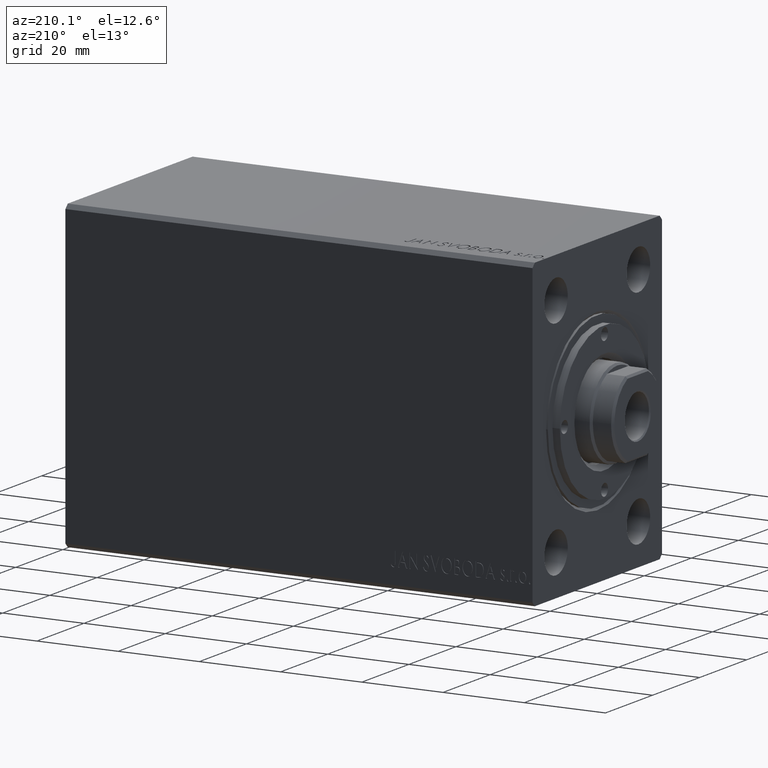
[diagram: clean part render]
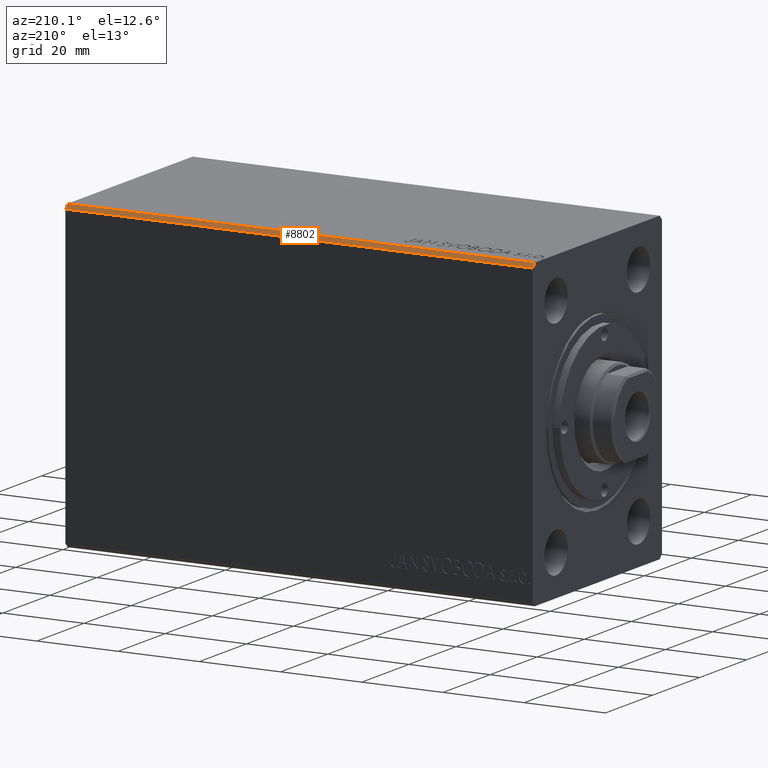
[diagram: same view with one face highlighted and labeled with its STEP entity id]
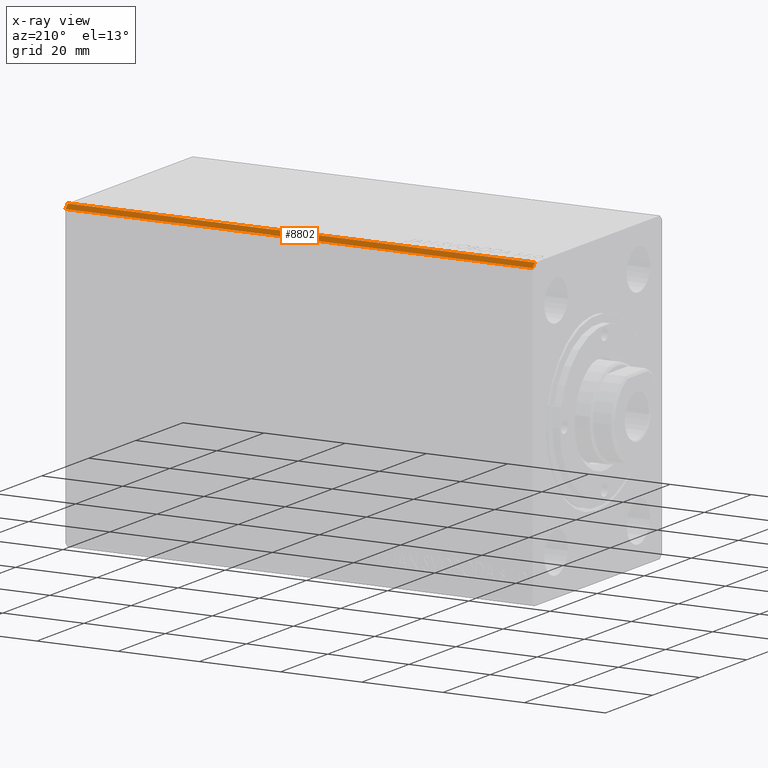
[diagram: x-ray of the same camera — body ghosted, the highlighted face saturated]
A machine part, auxiliary view. The second image highlights one B-rep face of the part: STEP entity #8802.
The next image is the same camera in x-ray: the body ghosted, the highlighted face saturated — about 0% of this face is hidden behind the body in this view.
In plain terms, the highlighted planar face has unit normal (0, -0.7071, -0.7071).
Its self-contained STEP definition (entity closure, byte-faithful):
#925 = DIRECTION ( 'NONE',  ( 0.000000000000000000, -0.7071067811865475727, -0.7071067811865475727 ) ) ;
#2450 = CARTESIAN_POINT ( 'NONE',  ( 115.0000000000000000, 27.50000000000000355, 36.50000000000000711 ) ) ;
#4379 = EDGE_CURVE ( 'NONE', #28225, #29889, #24785, .T. ) ;
#4450 = CARTESIAN_POINT ( 'NONE',  ( 0.000000000000000000, 27.50000000000000355, 36.50000000000000711 ) ) ;
#4730 = CARTESIAN_POINT ( 'NONE',  ( 115.0000000000000000, 27.50000000000000355, 36.50000000000000711 ) ) ;
#5311 = CARTESIAN_POINT ( 'NONE',  ( 115.0000000000000000, 26.50000000000000355, 37.50000000000000711 ) ) ;
#8802 = ADVANCED_FACE ( 'NONE', ( #25272 ), #12112, .F. ) ;
#10694 = CARTESIAN_POINT ( 'NONE',  ( 115.0000000000000000, 26.50000000000000355, 37.50000000000000711 ) ) ;
#11907 = EDGE_CURVE ( 'NONE', #41744, #28225, #33255, .T. ) ;
#12112 = PLANE ( 'NONE',  #16315 ) ;
#12590 = VECTOR ( 'NONE', #27289, 1000.000000000000114 ) ;
#14224 = ORIENTED_EDGE ( 'NONE', *, *, #33236, .F. ) ;
#14585 = VECTOR ( 'NONE', #19388, 1000.000000000000000 ) ;
#14745 = CARTESIAN_POINT ( 'NONE',  ( 0.000000000000000000, 26.50000000000000355, 37.50000000000000711 ) ) ;
#16315 = AXIS2_PLACEMENT_3D ( 'NONE', #4730, #925, #18373 ) ;
#18373 = DIRECTION ( 'NONE',  ( 0.000000000000000000, 0.7071067811865474617, -0.7071067811865474617 ) ) ;
#18762 = EDGE_LOOP ( 'NONE', ( #41476, #26946, #14224, #33297 ) ) ;
#19388 = DIRECTION ( 'NONE',  ( -1.000000000000000000, -0.000000000000000000, -0.000000000000000000 ) ) ;
#20205 = CARTESIAN_POINT ( 'NONE',  ( 115.0000000000000000, 27.50000000000000355, 36.50000000000000711 ) ) ;
#21058 = VERTEX_POINT ( 'NONE', #10694 ) ;
#24785 = LINE ( 'NONE', #4450, #12590 ) ;
#25272 = FACE_OUTER_BOUND ( 'NONE', #18762, .T. ) ;
#26349 = DIRECTION ( 'NONE',  ( -1.000000000000000000, -0.000000000000000000, -0.000000000000000000 ) ) ;
#26946 = ORIENTED_EDGE ( 'NONE', *, *, #37127, .F. ) ;
#27289 = DIRECTION ( 'NONE',  ( 0.000000000000000000, -0.7071067811865474617, 0.7071067811865474617 ) ) ;
#28225 = VERTEX_POINT ( 'NONE', #33147 ) ;
#29477 = VECTOR ( 'NONE', #26349, 1000.000000000000000 ) ;
#29889 = VERTEX_POINT ( 'NONE', #14745 ) ;
#31324 = DIRECTION ( 'NONE',  ( 0.000000000000000000, -0.7071067811865474617, 0.7071067811865474617 ) ) ;
#32322 = LINE ( 'NONE', #5311, #14585 ) ;
#33147 = CARTESIAN_POINT ( 'NONE',  ( 0.000000000000000000, 27.50000000000000355, 36.50000000000000711 ) ) ;
#33236 = EDGE_CURVE ( 'NONE', #41744, #21058, #34444, .T. ) ;
#33255 = LINE ( 'NONE', #2450, #29477 ) ;
#33297 = ORIENTED_EDGE ( 'NONE', *, *, #11907, .T. ) ;
#34444 = LINE ( 'NONE', #20205, #38738 ) ;
#37127 = EDGE_CURVE ( 'NONE', #21058, #29889, #32322, .T. ) ;
#38738 = VECTOR ( 'NONE', #31324, 1000.000000000000114 ) ;
#38816 = CARTESIAN_POINT ( 'NONE',  ( 115.0000000000000000, 27.50000000000000355, 36.50000000000000711 ) ) ;
#41476 = ORIENTED_EDGE ( 'NONE', *, *, #4379, .T. ) ;
#41744 = VERTEX_POINT ( 'NONE', #38816 ) ;